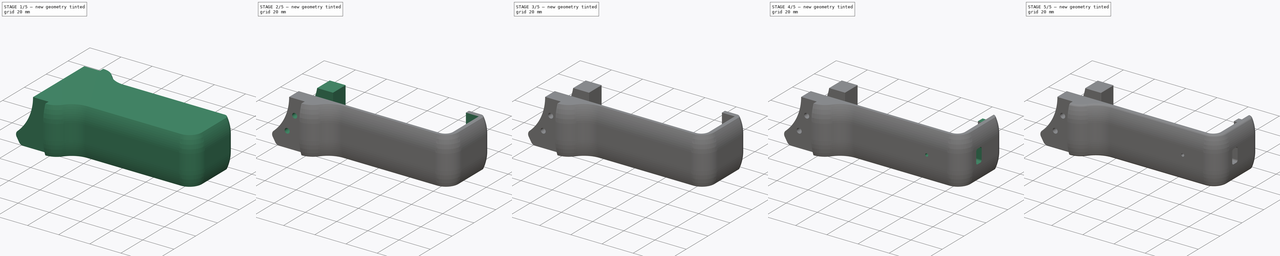
[diagram: build sequence overview — one tinted view per stage of 5, left to right]
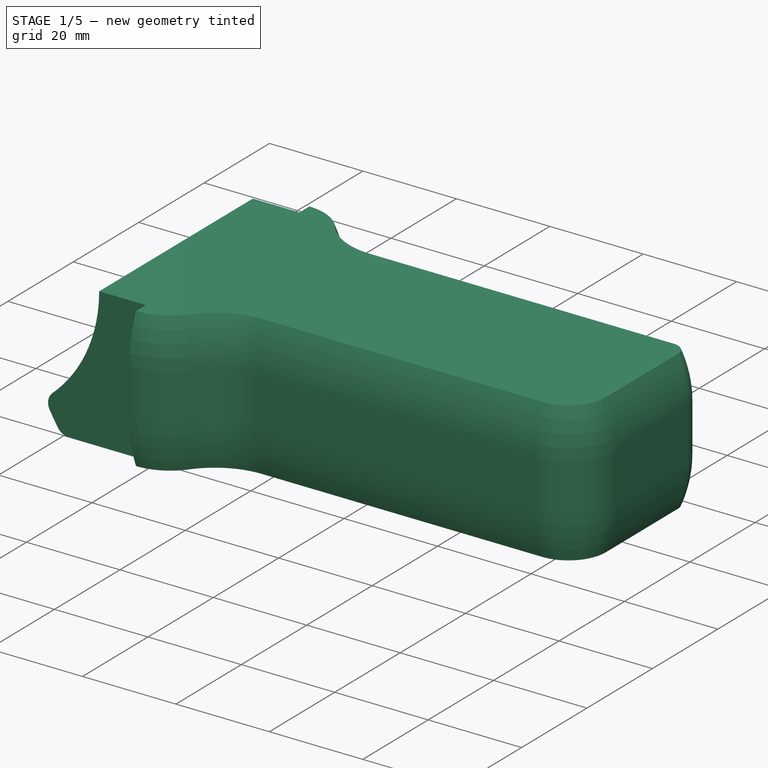
[diagram: stage 1 of 5 — iso view after this stage's code; geometry added in this stage tinted green]
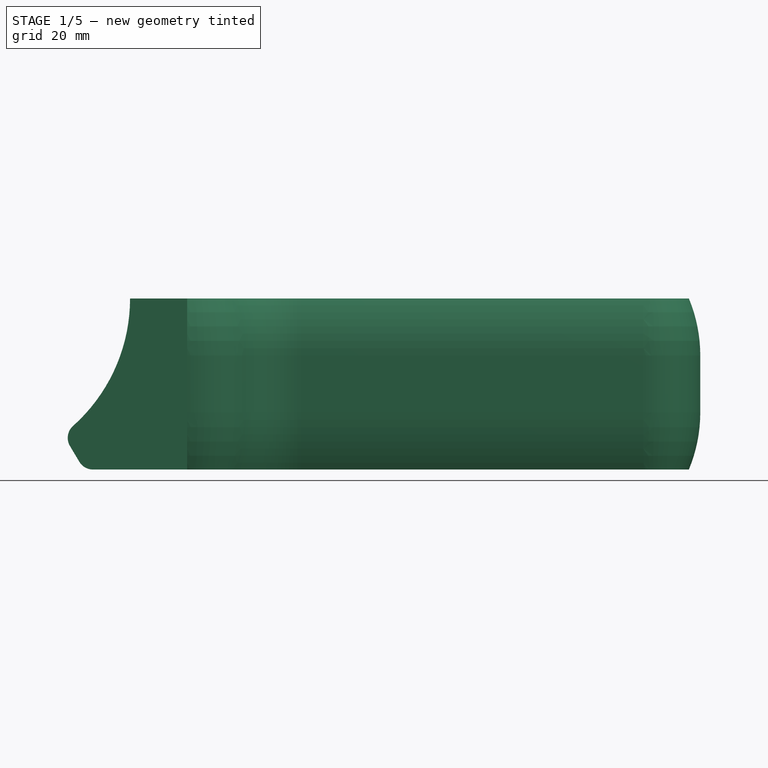
[diagram: stage 1 of 5 — front view after this stage's code; geometry added in this stage tinted green]
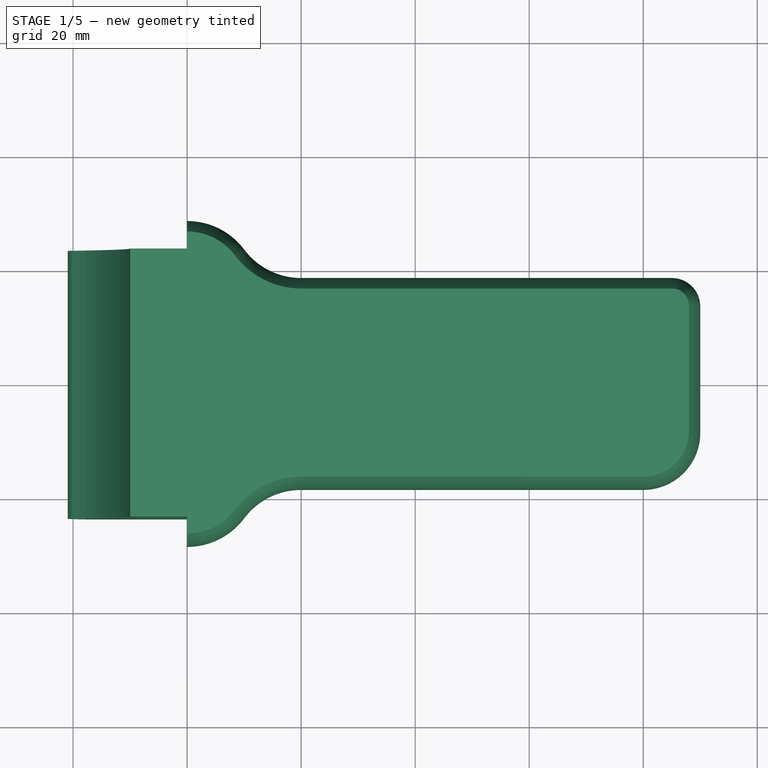
[diagram: stage 1 of 5 — top view after this stage's code; geometry added in this stage tinted green]
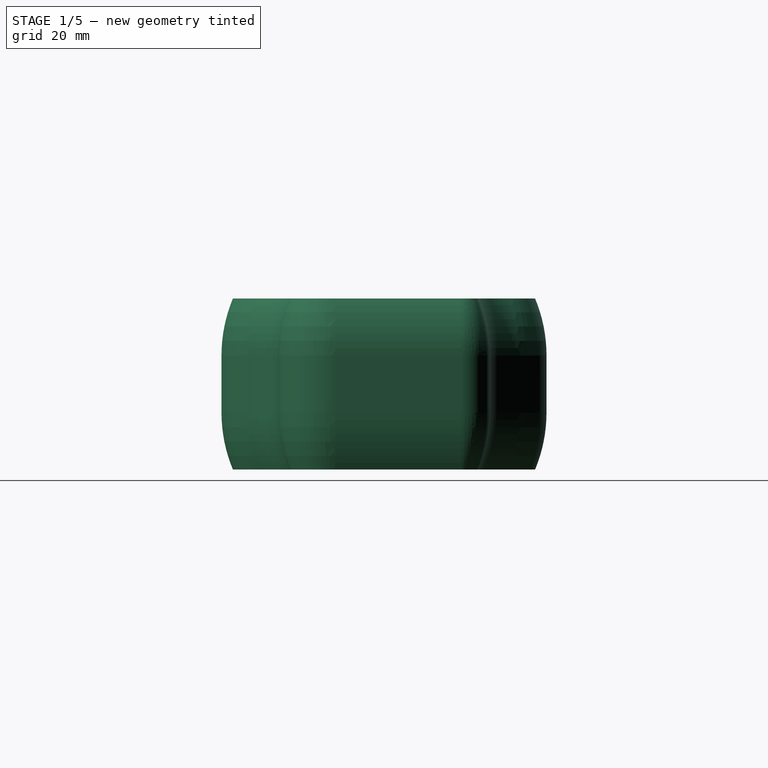
[diagram: stage 1 of 5 — right view after this stage's code; geometry added in this stage tinted green]
FCSTD DOCUMENT  (FreeCAD 1.0R38806 (Git))
Label: Limb_Top_Shell
License: All rights reserved
LicenseURL: https://en.wikipedia.org/wiki/All_rights_reserved
objects: Sketcher::SketchObject×18, PartDesign::Pocket×15, PartDesign::Fillet×3, PartDesign::Pad×2, PartDesign::SubtractivePipe×1, PartDesign::Body×1
note: 100 computed .brp shape members not serialized (recipe doc carries the construction recipe); baked Part::Feature solids carry a one-line shape summary decoded from their .brp

FEATURE [Sketcher::SketchObject] Sketch  label="sk_base"
  ArcFitTolerance = 1e-06
  AttachmentSupport = -> [XY_Plane]
  FullyConstrained = true
  MakeInternals = false
  MapMode = 5
  sketch-geometry (20):
    g0: LineSegment StartX=0 StartY=-23.5 StartZ=0 EndX=0 EndY=23.5 EndZ=0
    g1: LineSegment StartX=0 StartY=23.5 StartZ=0 EndX=40 EndY=23.5 EndZ=0
    g2: ArcOfCircle CenterX=40 CenterY=16 CenterZ=0 NormalX=0 NormalY=0 NormalZ=1 AngleXU=0 Radius=12.5 StartAngle=0.643501 EndAngle=1.5708
    g3: ArcOfCircle CenterX=60 CenterY=31 CenterZ=0 NormalX=0 NormalY=0 NormalZ=1 AngleXU=0 Radius=12.5 StartAngle=3.78509 EndAngle=4.71239
    g4: LineSegment StartX=60 StartY=18.5 StartZ=0 EndX=125 EndY=18.5 EndZ=0
    g5: LineSegment StartX=130 StartY=13.5 StartZ=0 EndX=130 EndY=-8.5 EndZ=0
    g6: LineSegment StartX=120 StartY=-18.5 StartZ=0 EndX=60 EndY=-18.5 EndZ=0
    g7: ArcOfCircle CenterX=60 CenterY=-31 CenterZ=0 NormalX=0 NormalY=0 NormalZ=1 AngleXU=0 Radius=12.5 StartAngle=1.5708 EndAngle=2.49809
    g8: ArcOfCircle CenterX=40 CenterY=-16 CenterZ=0 NormalX=0 NormalY=0 NormalZ=1 AngleXU=0 Radius=12.5 StartAngle=4.71239 EndAngle=5.63968
    g9: LineSegment StartX=40 StartY=-23.5 StartZ=0 EndX=0 EndY=-23.5 EndZ=0
    g10: ArcOfCircle CenterX=125 CenterY=13.5 CenterZ=0 NormalX=0 NormalY=0 NormalZ=1 AngleXU=0 Radius=5 StartAngle=0 EndAngle=1.5708
    g11: GeomPoint [constr] X=130 Y=18.5 Z=0
    g12: ArcOfCircle CenterX=120 CenterY=-8.5 CenterZ=0 NormalX=0 NormalY=0 NormalZ=1 AngleXU=0 Radius=10 StartAngle=4.71239 EndAngle=6.28319
    g13: GeomPoint [constr] X=130 Y=-18.5 Z=0
    g14: LineSegment StartX=40 StartY=-23.5 StartZ=0 EndX=40 EndY=-28.5 EndZ=0
    g15: LineSegment StartX=40 StartY=23.5 StartZ=0 EndX=40 EndY=28.5 EndZ=0
    g16: LineSegment [constr] StartX=40 StartY=-28.5 StartZ=0 EndX=0 EndY=-28.5 EndZ=0
    g17: LineSegment [constr] StartX=0 StartY=-28.5 StartZ=0 EndX=0 EndY=-23.5 EndZ=0
    g18: LineSegment [constr] StartX=40 StartY=28.5 StartZ=0 EndX=0 EndY=28.5 EndZ=0
    g19: LineSegment [constr] StartX=0 StartY=28.5 StartZ=0 EndX=0 EndY=23.5 EndZ=0
  constraints (53):
    c: Coincident(g0,g1)
    c: Horizontal(g1)
    c: Tangent(g2,g3) = 1.5708
    c: Horizontal(g4)
    c: Vertical(g5)
    c: Horizontal(g6)
    c: Tangent(g6,g7) = -1.5708
    c: Tangent(g7,g8) = 1.5708
    c: Coincident(g9,g0)
    c: Tangent(g3,g4) = -1.5708
    c: Distance(g11,g0) = 130  'length'
    c: PointOnObject(g11,g4)
    c: PointOnObject(g11,g5)
    c: Tangent(g4,g10) = 1.5708
    c: Tangent(g5,g10) = 1.5708
    c: PointOnObject(g13,g5)
    c: PointOnObject(g13,g6)
    c: Tangent(g5,g12) = 1.5708
    c: Tangent(g6,g12) = 1.5708
    c: DistanceX(g0,g1) = 40  'length_wide'
    c: Equal(g1,g9)
    c: Equal(g2,g3)
    c: Equal(g7,g2)
    c: Equal(g8,g2)
    c: DistanceX(g1,g3) = 20  'length_curve'
    c: Radius(g10) = 5  'rad_upper'
    c: Radius(g12) = 10  'rad_lower'
    c: Horizontal(g9)
    c: PointOnObject(g0,g-2)
    c: Symmetric(g0,g0,g-1)
    c: Coincident(g14,g9)
    c: Coincident(g14,g8)
    c: Vertical(g14)
    c: Perpendicular(g8,g14)
    c: Coincident(g15,g1)
    c: Coincident(g15,g2)
    c: Perpendicular(g2,g15)
    c: Vertical(g15)
    c: DistanceY(g15,g15) = 5  'width_mount'
    c: Equal(g15,g14)
    c: Coincident(g16,g8)
    c: PointOnObject(g16,g-2)
    c: Horizontal(g16)
    c: Coincident(g17,g16)
    c: Coincident(g17,g0)
    c: Coincident(g18,g2)
    c: PointOnObject(g18,g-2)
    c: Horizontal(g18)
    c: Coincident(g19,g18)
    c: Coincident(g19,g0)
    c: DistanceY(g16,g18) = 57  'width'
    c: DistanceY(g3,g2) = 10  'width_curve'
    c: Vertical(g3,g6)
FEATURE [PartDesign::Pad] Pad  label="pad_base"
  Direction = (0,0,1)
  Length = 30
  Length2 = 10
  Profile = -> Sketch
  ReferenceAxis = -> Sketch [N_Axis]
  Refine = true
  Reversed = true
  Suppressed = false
  Type = 0
FEATURE [Sketcher::SketchObject] Sketch001  label="sk_bevel"
  ArcFitTolerance = 1e-06
  AttachmentOffset = pos=(0,0,40) rot=(0,0,1;0rad)
  AttachmentSupport = -> [YZ_Plane]
  FullyConstrained = true
  MakeInternals = false
  MapMode = 5
  Placement = pos=(40,0,0) rot=(0.57735,0.57735,0.57735;2.0944rad)
  expr: .AttachmentOffset.Base.z = <<sk_base>>.Constraints.length_wide
  expr: .Constraints.height = <<pad_base>>.Length
  expr: .Constraints.position = <<sk_base>>.Constraints.width / 2
  sketch-geometry (6):
    g0: LineSegment StartX=-29.5 StartY=-30 StartZ=0 EndX=-29.5 EndY=7.1e-15 EndZ=0
    g1: LineSegment StartX=-29.5 StartY=5.3e-15 StartZ=0 EndX=-26.5 EndY=5.3e-15 EndZ=0
    g2: LineSegment StartX=-29.5 StartY=-30 StartZ=0 EndX=-26.5 EndY=-30 EndZ=0
    g3: LineSegment StartX=-28.5 StartY=-10 StartZ=0 EndX=-28.5 EndY=-20 EndZ=0
    g4: ArcOfCircle CenterX=-2.5 CenterY=-20 CenterZ=0 NormalX=0 NormalY=0 NormalZ=1 AngleXU=0 Radius=26 StartAngle=3.14159 EndAngle=3.53638
    g5: ArcOfCircle CenterX=-2.5 CenterY=-10 CenterZ=0 NormalX=0 NormalY=0 NormalZ=1 AngleXU=0 Radius=26 StartAngle=2.7468 EndAngle=3.14159
  constraints (18):
    c: Coincident(g0,g1)
    c: Horizontal(g1)
    c: Coincident(g0,g2)
    c: Horizontal(g2)
    c: Coincident(g4,g2)
    c: Coincident(g5,g1)
    c: Equal(g5,g4)
    c: DistanceY(g0,g0) = 30  'height'
    c: DistanceX(g2,g2) = 3  'width'
    c: Tangent(g4,g3) = -1.5708
    c: Tangent(g5,g3) = -1.5708
    c: Radius(g4) = 26  'rad_arc'
    c: DistanceY(g3,g3) = 10  'height_center'
    c: Vertical(g0)
    c: Vertical(g3)
    c: Distance(g-2,g3) = 28.5  'position'
    c: PointOnObject(g0,g-1)
    c: Vertical(g1,g2)
FEATURE [Sketcher::SketchObject] Sketch002  label="sk_joint_pan"
  ArcFitTolerance = 1e-06
  AttachmentSupport = -> [XZ_Plane]
  FullyConstrained = true
  MakeInternals = false
  MapMode = 5
  Placement = pos=(0,0,0) rot=(1,0,0;1.5708rad)
  expr: .Constraints.rad_joint = <<pad_base>>.Length
  sketch-geometry (1):
    g0: Circle CenterX=0 CenterY=0 CenterZ=0 NormalX=0 NormalY=0 NormalZ=1 AngleXU=0 Radius=30
  constraints (2):
    c: Coincident(g0,g-1)
    c: Radius(g0) = 30  'rad_joint'
FEATURE [PartDesign::Pocket] Pocket  label="pocket_joint_pan"
  BaseFeature = -> Pad
  Direction = (0,1,-2e-16)
  Length = 5
  Length2 = 5
  Midplane = true
  Profile = -> Sketch002
  ReferenceAxis = -> Sketch002 [N_Axis]
  Refine = true
  Suppressed = false
  Type = 1
FEATURE [Sketcher::SketchObject] Sketch003  label="sk_angled_top"
  ArcFitTolerance = 1e-06
  AttachmentSupport = -> [XZ_Plane]
  ExternalGeometry = -> [Sketch002]
  FullyConstrained = true
  MakeInternals = false
  MapMode = 5
  Placement = pos=(0,0,0) rot=(1,0,0;1.5708rad)
  sketch-geometry (6):
    g0: LineSegment StartX=0 StartY=-30 StartZ=0 EndX=23.5 EndY=-30 EndZ=0
    g1: LineSegment StartX=0 StartY=-30 StartZ=0 EndX=0 EndY=-22.3607 EndZ=0
    g2: LineSegment StartX=0 StartY=-22.3607 StartZ=0 EndX=20 EndY=-22.3607 EndZ=0
    g3: LineSegment StartX=19.4587 StartY=-25.8766 StartZ=0 EndX=21.0921 EndY=-28.6289 EndZ=0
    g4: ArcOfCircle CenterX=23.5 CenterY=-27.2 CenterZ=0 NormalX=0 NormalY=0 NormalZ=1 AngleXU=0 Radius=2.8 StartAngle=3.67717 EndAngle=4.71239
    g5: ArcOfCircle CenterX=21.8667 CenterY=-24.4477 CenterZ=0 NormalX=0 NormalY=0 NormalZ=1 AngleXU=0 Radius=2.8 StartAngle=2.30053 EndAngle=3.67717
  constraints (17):
    c: Horizontal(g0)
    c: Coincident(g0,g1)
    c: Vertical(g1)
    c: Coincident(g1,g2)
    c: Horizontal(g2)
    c: DistanceX(g0,g0) = 23.5  'width_upper'
    c: DistanceX(g2,g2) = 20  'width_lower'
    c: PointOnObject(g2,g-3)
    c: PointOnObject(g0,g-2)
    c: PointOnObject(g0,g-3)
    c: Coincident(g5,g2)
    c: Tangent(g4,g0) = -1.5708
    c: Tangent(g4,g3) = -1.5708
    c: Tangent(g5,g3) = -1.5708
    c: Tangent(g5,g-3)
    c: Radius(g5) = 2.8  'rad_bevel'
    c: Equal(g5,g4)
FEATURE [PartDesign::Pocket] Pocket001  label="pocket_angled_top"
  BaseFeature = -> Pocket
  Direction = (0,1,-2e-16)
  Length = 5
  Length2 = 5
  Midplane = true
  Profile = -> Sketch003
  ReferenceAxis = -> Sketch003 [N_Axis]
  Refine = true
  Suppressed = false
  Type = 1
FEATURE [Sketcher::SketchObject] Sketch004  label="sk_servo_screw_plane"
  ArcFitTolerance = 1e-06
  AttachmentOffset = pos=(0,0,-18.5) rot=(0,0,1;0rad)
  AttachmentSupport = -> [XZ_Plane]
  FullyConstrained = true
  MakeInternals = false
  MapMode = 5
  Placement = pos=(0,18.5,-4.1e-15) rot=(1,0,0;1.5708rad)
  expr: .AttachmentOffset.Base.z = -<<sk_base>>.Constraints.width / 2 + <<sk_base>>.Constraints.width_curve
  expr: Constraints[11] = <<sk_base>>.Constraints.length - <<sk_base>>.Constraints.rad_upper
  sketch-geometry (4):
    g0: LineSegment StartX=117.25 StartY=-5 StartZ=0 EndX=117.25 EndY=-25 EndZ=0
    g1: LineSegment StartX=117.25 StartY=-25 StartZ=0 EndX=125 EndY=-25 EndZ=0
    g2: LineSegment StartX=125 StartY=-25 StartZ=0 EndX=125 EndY=-5 EndZ=0
    g3: LineSegment StartX=125 StartY=-5 StartZ=0 EndX=117.25 EndY=-5 EndZ=0
  constraints (12):
    c: Coincident(g0,g1)
    c: Coincident(g1,g2)
    c: Coincident(g2,g3)
    c: Coincident(g3,g0)
    c: Vertical(g0)
    c: Vertical(g2)
    c: Horizontal(g1)
    c: Horizontal(g3)
    c: DistanceY(g0,g0) = 20  'height'
    c: DistanceX(g1,g1) = 7.75  'width'
    c: DistanceY(g0,g-1) = 5  'position_height'
    c: Distance(g2,g-2) = 125
FEATURE [Sketcher::SketchObject] Sketch005  label="sk_bottom_removal_and_interlock"
  ArcFitTolerance = 1e-06
  AttachmentSupport = -> [XY_Plane]
  FullyConstrained = true
  MakeInternals = false
  MapMode = 5
  expr: .Constraints.position_width = <<sk_base>>.Constraints.width / 2
  sketch-geometry (13):
    g0: LineSegment StartX=0 StartY=28.5 StartZ=0 EndX=117.25 EndY=28.5 EndZ=0
    g1: LineSegment StartX=117.25 StartY=28.5 StartZ=0 EndX=117.25 EndY=13.75 EndZ=0
    g2: LineSegment StartX=117.25 StartY=13.75 StartZ=0 EndX=125.5 EndY=13.75 EndZ=0
    g3: LineSegment StartX=125.5 StartY=13.75 StartZ=0 EndX=125.5 EndY=-9.75 EndZ=0
    g4: ArcOfCircle CenterX=120.5 CenterY=-9.75 CenterZ=0 NormalX=0 NormalY=0 NormalZ=1 AngleXU=0 Radius=5 StartAngle=4.71239 EndAngle=6.28319
    g5: LineSegment StartX=120.5 StartY=-14.75 StartZ=0 EndX=0 EndY=-14.75 EndZ=0
    g6: LineSegment StartX=0 StartY=-14.75 StartZ=0 EndX=0 EndY=2.75 EndZ=0
    g7: LineSegment StartX=0 StartY=2.75 StartZ=0 EndX=39.75 EndY=2.75 EndZ=0
    g8: LineSegment StartX=39.75 StartY=2.75 StartZ=0 EndX=39.75 EndY=14.25 EndZ=0
    g9: LineSegment StartX=39.75 StartY=14.25 StartZ=0 EndX=0 EndY=14.25 EndZ=0
    g10: LineSegment StartX=0 StartY=14.25 StartZ=0 EndX=0 EndY=28.5 EndZ=0
    g11: LineSegment [constr] StartX=125.5 StartY=13.75 StartZ=0 EndX=125.5 EndY=28.5 EndZ=0
    g12: LineSegment [constr] StartX=125.5 StartY=28.5 StartZ=0 EndX=117.25 EndY=28.5 EndZ=0
  constraints (37):
    c: PointOnObject(g0,g-2)
    c: Horizontal(g0)
    c: Coincident(g0,g1)
    c: Vertical(g1)
    c: Coincident(g1,g2)
    c: Horizontal(g2)
    c: Coincident(g2,g3)
    c: Vertical(g3)
    c: Tangent(g3,g4) = 1.5708
    c: PointOnObject(g5,g-2)
    c: Horizontal(g5)
    c: Coincident(g5,g6)
    c: PointOnObject(g6,g-2)
    c: Coincident(g6,g7)
    c: Horizontal(g7)
    c: Coincident(g7,g8)
    c: Vertical(g8)
    c: Coincident(g8,g9)
    c: PointOnObject(g9,g-2)
    c: Horizontal(g9)
    c: Coincident(g9,g10)
    c: Coincident(g10,g0)
    c: DistanceY(g8,g8) = 11.5  'width_interlock'
    c: DistanceX(g9,g9) = 39.75  'length_interlock'
    c: Coincident(g11,g2)
    c: Vertical(g11)
    c: Coincident(g12,g0)
    c: Horizontal(g12)
    c: DistanceX(g0,g12) = 125.5  'length'
    c: Coincident(g11,g12)
    c: Tangent(g4,g5) = 1.5708
    c: Radius(g4) = 5  'rad_lower'
    c: DistanceY(g1,g1) = 14.75  'width_notch'
    c: DistanceX(g2,g2) = 8.25  'length_notch'
    c: DistanceY(g4,g11) = 43.25  'width'
    c: Distance(g0,g-1) = 28.5  'position_width'
    c: DistanceY(g10,g10) = 14.25  'position_interlock'
FEATURE [Sketcher::SketchObject] Sketch006  label="sk_shorten_interlock"
  ArcFitTolerance = 1e-06
  AttachmentSupport = -> [XY_Plane]
  ExternalGeometry = -> [Sketch005]
  FullyConstrained = true
  MakeInternals = false
  MapMode = 5
  sketch-geometry (4):
    g0: LineSegment StartX=0 StartY=14.25 StartZ=0 EndX=0 EndY=2.75 EndZ=0
    g1: LineSegment StartX=0 StartY=2.75 StartZ=0 EndX=39.75 EndY=2.75 EndZ=0
    g2: LineSegment StartX=39.75 StartY=2.75 StartZ=0 EndX=39.75 EndY=14.25 EndZ=0
    g3: LineSegment StartX=39.75 StartY=14.25 StartZ=0 EndX=0 EndY=14.25 EndZ=0
  constraints (10):
    c: Coincident(g0,g1)
    c: Coincident(g1,g2)
    c: Coincident(g2,g3)
    c: Coincident(g3,g0)
    c: Vertical(g0)
    c: Vertical(g2)
    c: Horizontal(g1)
    c: Horizontal(g3)
    c: Coincident(g0,g-3)
    c: Coincident(g1,g-5)
FEATURE [Sketcher::SketchObject] Sketch007  label="sk_screwholes_ball_bearing_mount"
  ArcFitTolerance = 1e-06
  AttachmentOffset = pos=(0,0,23.5) rot=(0,0,1;0rad)
  AttachmentSupport = -> [XZ_Plane]
  FullyConstrained = true
  MakeInternals = false
  MapMode = 5
  Placement = pos=(0,-23.5,5.2e-15) rot=(1,0,0;1.5708rad)
  expr: .AttachmentOffset.Base.z = <<sk_base>>.Constraints.width / 2 - <<sk_base>>.Constraints.width_mount
  sketch-geometry (3):
    g0: Circle [constr] CenterX=0 CenterY=0 CenterZ=0 NormalX=0 NormalY=0 NormalZ=1 AngleXU=0 Radius=35
    g1: Circle CenterX=33.541 CenterY=-10 CenterZ=0 NormalX=0 NormalY=0 NormalZ=1 AngleXU=0 Radius=1.6
    g2: Circle CenterX=28.7228 CenterY=-20 CenterZ=0 NormalX=0 NormalY=0 NormalZ=1 AngleXU=0 Radius=1.6
  constraints (8):
    c: Coincident(g0,g-1)
    c: Radius(g0) = 35  'rad_helper'
    c: PointOnObject(g1,g0)
    c: PointOnObject(g2,g0)
    c: Distance(g1,g-1) = 10  'position_height'
    c: DistanceY(g2,g1) = 10  'distance'
    c: Equal(g1,g2)
    c: Radius(g1) = 1.6  'rad_screw'
FEATURE [Sketcher::SketchObject] Sketch008  label="sk_screwholes_servo_horn_mount"
  ArcFitTolerance = 1e-06
  AttachmentOffset = pos=(0,0,-14.25) rot=(0,0,1;0rad)
  AttachmentSupport = -> [XZ_Plane]
  FullyConstrained = true
  MakeInternals = false
  MapMode = 5
  Placement = pos=(0,14.25,-3.2e-15) rot=(1,0,0;1.5708rad)
  expr: .AttachmentOffset.Base.z = -<<sk_base>>.Constraints.width / 2 + <<sk_bottom_removal_and_interlock>>.Constraints.position_interlock
  expr: .Constraints.rad_screw = <<sk_screwholes_ball_bearing_mount>>.Constraints.rad_screw
  sketch-geometry (3):
    g0: Circle [constr] CenterX=0 CenterY=0 CenterZ=0 NormalX=0 NormalY=0 NormalZ=1 AngleXU=0 Radius=35
    g1: Circle CenterX=33.541 CenterY=-10 CenterZ=0 NormalX=0 NormalY=0 NormalZ=1 AngleXU=0 Radius=1.6
    g2: Circle CenterX=28.7228 CenterY=-20 CenterZ=0 NormalX=0 NormalY=0 NormalZ=1 AngleXU=0 Radius=1.6
  constraints (8):
    c: Coincident(g0,g-1)
    c: Radius(g0) = 35  'rad_helper'
    c: PointOnObject(g1,g0)
    c: PointOnObject(g2,g0)
    c: Equal(g1,g2)
    c: Distance(g1,g-1) = 10  'position_height'
    c: DistanceY(g2,g1) = 10  'distance'
    c: Radius(g1) = 1.6  'rad_screw'
FEATURE [Sketcher::SketchObject] Sketch009  label="sk_bottom_nuthole_servo_horn_mount"
  ArcFitTolerance = 1e-06
  AttachmentSupport = -> [YZ_Plane]
  FullyConstrained = true
  MakeInternals = false
  MapMode = 5
  Placement = pos=(0,0,0) rot=(0.57735,0.57735,0.57735;2.0944rad)
  sketch-geometry (4):
    g0: LineSegment StartX=10 StartY=-7.1 StartZ=0 EndX=7 EndY=-7.1 EndZ=0
    g1: LineSegment StartX=7 StartY=-7.1 StartZ=0 EndX=7 EndY=-12.9 EndZ=0
    g2: LineSegment StartX=7 StartY=-12.9 StartZ=0 EndX=10 EndY=-12.9 EndZ=0
    g3: LineSegment StartX=10 StartY=-12.9 StartZ=0 EndX=10 EndY=-7.1 EndZ=0
  constraints (12):
    c: Coincident(g0,g1)
    c: Coincident(g1,g2)
    c: Coincident(g2,g3)
    c: Coincident(g3,g0)
    c: Horizontal(g0)
    c: Horizontal(g2)
    c: Vertical(g1)
    c: Vertical(g3)
    c: DistanceY(g3,g3) = 5.8  'height'
    c: Distance(g2,g2) = 3  'width'
    c: Distance(g0,g-1) = 7.1  'position_height'
    c: Distance(g1,g-2) = 7  'position_width'
FEATURE [Sketcher::SketchObject] Sketch010  label="sk_top_nuthole_servo_horn_mount"
  ArcFitTolerance = 1e-06
  AttachmentSupport = -> [YZ_Plane]
  FullyConstrained = true
  MakeInternals = false
  MapMode = 5
  Placement = pos=(0,0,0) rot=(0.57735,0.57735,0.57735;2.0944rad)
  expr: .Constraints.height = <<sk_bottom_nuthole_servo_horn_mount>>.Constraints.height
  expr: .Constraints.position_width = <<sk_bottom_nuthole_servo_horn_mount>>.Constraints.position_width
  expr: .Constraints.width = <<sk_bottom_nuthole_servo_horn_mount>>.Constraints.width
  sketch-geometry (4):
    g0: LineSegment StartX=10 StartY=-17.1 StartZ=0 EndX=7 EndY=-17.1 EndZ=0
    g1: LineSegment StartX=7 StartY=-17.1 StartZ=0 EndX=7 EndY=-22.9 EndZ=0
    g2: LineSegment StartX=7 StartY=-22.9 StartZ=0 EndX=10 EndY=-22.9 EndZ=0
    g3: LineSegment StartX=10 StartY=-22.9 StartZ=0 EndX=10 EndY=-17.1 EndZ=0
  constraints (12):
    c: Coincident(g0,g1)
    c: Coincident(g1,g2)
    c: Coincident(g2,g3)
    c: Coincident(g3,g0)
    c: Horizontal(g0)
    c: Horizontal(g2)
    c: Vertical(g1)
    c: Vertical(g3)
    c: Distance(g2,g2) = 3  'width'
    c: DistanceY(g3,g3) = 5.8  'height'
    c: Distance(g1,g-2) = 7  'position_width'
    c: Distance(g0,g-1) = 17.1  'position_height'
FEATURE [Sketcher::SketchObject] Sketch011  label="sk_screwholes_servopocket"
  ArcFitTolerance = 1e-06
  AttachmentOffset = pos=(0,0,-18.5) rot=(0,0,1;0rad)
  AttachmentSupport = -> [XZ_Plane]
  FullyConstrained = true
  MakeInternals = false
  MapMode = 5
  Placement = pos=(0,18.5,-4.1e-15) rot=(1,0,0;1.5708rad)
  expr: .AttachmentOffset.Base.z = -<<sk_base>>.Constraints.width / 2 + <<sk_base>>.Constraints.width_curve
  expr: .Constraints.rad_screw = <<sk_screwholes_ball_bearing_mount>>.Constraints.rad_screw
  sketch-geometry (2):
    g0: Circle CenterX=121 CenterY=-10 CenterZ=0 NormalX=0 NormalY=0 NormalZ=1 AngleXU=0 Radius=1.6
    g1: Circle CenterX=121 CenterY=-20 CenterZ=0 NormalX=0 NormalY=0 NormalZ=1 AngleXU=0 Radius=1.6
  constraints (6):
    c: Equal(g0,g1)
    c: Vertical(g1,g0)
    c: Radius(g0) = 1.6  'rad_screw'
    c: DistanceY(g1,g0) = 10  'distance'
    c: Distance(g0,g-1) = 10  'position_height'
    c: Distance(g0,g-2) = 121  'position_width'
FEATURE [Sketcher::SketchObject] Sketch012  label="sk_cableguide"
  ArcFitTolerance = 1e-06
  AttachmentOffset = pos=(0,0,-25) rot=(0,0,1;0rad)
  AttachmentSupport = -> [XY_Plane]
  ExternalGeometry = -> [Sketch005]
  FullyConstrained = true
  MakeInternals = false
  MapMode = 5
  Placement = pos=(0,0,-25) rot=(0,0,1;0rad)
  expr: .AttachmentOffset.Base.z = -<<pocket_bottom_removal_and_interlock>>.Length
  sketch-geometry (12):
    g0: LineSegment StartX=31 StartY=-5.75 StartZ=0 EndX=124 EndY=-5.75 EndZ=0
    g1: LineSegment StartX=125 StartY=-4.75 StartZ=0 EndX=125 EndY=1.75 EndZ=0
    g2: LineSegment StartX=124 StartY=2.75 StartZ=0 EndX=31 EndY=2.75 EndZ=0
    g3: LineSegment StartX=30 StartY=1.75 StartZ=0 EndX=30 EndY=-4.75 EndZ=0
    g4: ArcOfCircle CenterX=31 CenterY=1.75 CenterZ=0 NormalX=0 NormalY=0 NormalZ=1 AngleXU=0 Radius=1 StartAngle=1.5708 EndAngle=3.14159
    g5: GeomPoint [constr] X=30 Y=2.75 Z=0
    g6: ArcOfCircle CenterX=31 CenterY=-4.75 CenterZ=0 NormalX=0 NormalY=0 NormalZ=1 AngleXU=0 Radius=1 StartAngle=3.14159 EndAngle=4.71239
    g7: GeomPoint [constr] X=30 Y=-5.75 Z=0
    g8: ArcOfCircle CenterX=124 CenterY=1.75 CenterZ=0 NormalX=0 NormalY=0 NormalZ=1 AngleXU=0 Radius=1 StartAngle=0 EndAngle=1.5708
    g9: GeomPoint [constr] X=125 Y=2.75 Z=0
    g10: ArcOfCircle CenterX=124 CenterY=-4.75 CenterZ=0 NormalX=0 NormalY=0 NormalZ=1 AngleXU=0 Radius=1 StartAngle=4.71239 EndAngle=6.28319
    g11: GeomPoint [constr] X=125 Y=-5.75 Z=0
  constraints (28):
    c: Horizontal(g0)
    c: Horizontal(g2)
    c: Vertical(g1)
    c: Vertical(g3)
    c: DistanceX(g7,g11) = 95  'width'
    c: DistanceX(g-1,g7) = 30  'position_width'
    c: PointOnObject(g5,g-3)
    c: Distance(g11,g9) = 8.5  'height'
    c: PointOnObject(g5,g2)
    c: PointOnObject(g5,g3)
    c: Tangent(g2,g4) = -1.5708
    c: Tangent(g3,g4) = -1.5708
    c: PointOnObject(g7,g0)
    c: PointOnObject(g7,g3)
    c: Tangent(g0,g6) = -1.5708
    c: Tangent(g3,g6) = -1.5708
    c: PointOnObject(g9,g1)
    c: PointOnObject(g9,g2)
    c: Tangent(g1,g8) = -1.5708
    c: Tangent(g2,g8) = -1.5708
    c: PointOnObject(g11,g0)
    c: PointOnObject(g11,g1)
    c: Tangent(g0,g10) = -1.5708
    c: Tangent(g1,g10) = -1.5708
    c: Equal(g4,g6)
    c: Equal(g4,g8)
    c: Equal(g4,g10)
    c: Radius(g4) = 1  'rad_corner'
FEATURE [Sketcher::SketchObject] Sketch013  label="sk_servocable_hole"
  ArcFitTolerance = 1e-06
  AttachmentOffset = pos=(0,0,130) rot=(0,0,1;0rad)
  AttachmentSupport = -> [YZ_Plane]
  FullyConstrained = true
  MakeInternals = false
  MapMode = 5
  Placement = pos=(130,0,0) rot=(0.57735,0.57735,0.57735;2.0944rad)
  expr: .AttachmentOffset.Base.z = <<sk_base>>.Constraints.length
  sketch-geometry (11):
    g0: LineSegment StartX=-6 StartY=-11.75 StartZ=0 EndX=-6 EndY=-18.25 EndZ=0
    g1: LineSegment StartX=-4.75 StartY=-19.5 StartZ=0 EndX=-2.25 EndY=-19.5 EndZ=0
    g2: LineSegment StartX=-1 StartY=-18.25 StartZ=0 EndX=-1 EndY=-11.75 EndZ=0
    g3: LineSegment StartX=-2.25 StartY=-10.5 StartZ=0 EndX=-4.75 EndY=-10.5 EndZ=0
    g4: ArcOfCircle CenterX=-4.75 CenterY=-11.75 CenterZ=0 NormalX=0 NormalY=0 NormalZ=1 AngleXU=0 Radius=1.25 StartAngle=1.5708 EndAngle=3.14159
    g5: ArcOfCircle CenterX=-4.75 CenterY=-18.25 CenterZ=0 NormalX=0 NormalY=0 NormalZ=1 AngleXU=0 Radius=1.25 StartAngle=3.14159 EndAngle=4.71239
    g6: ArcOfCircle CenterX=-2.25 CenterY=-18.25 CenterZ=0 NormalX=0 NormalY=0 NormalZ=1 AngleXU=0 Radius=1.25 StartAngle=4.71239 EndAngle=6.2832
    g7: ArcOfCircle CenterX=-2.25 CenterY=-11.75 CenterZ=0 NormalX=0 NormalY=0 NormalZ=1 AngleXU=0 Radius=1.25 StartAngle=0 EndAngle=1.5708
    g8: GeomPoint [constr] X=-6 Y=-10.5 Z=0
    g9: GeomPoint [constr] X=-1 Y=-19.5 Z=0
    g10: Circle [constr] CenterX=-3.5 CenterY=-15 CenterZ=0 NormalX=0 NormalY=0 NormalZ=1 AngleXU=0 Radius=2.5
  constraints (27):
    c: Tangent(g0,g4) = -1.5708
    c: Tangent(g0,g5) = -1.5708
    c: Tangent(g1,g5) = -1.5708
    c: Tangent(g1,g6) = -1.5708
    c: Tangent(g2,g7) = -1.5708
    c: Tangent(g3,g7) = -1.5708
    c: Tangent(g3,g4) = -1.5708
    c: Vertical(g0)
    c: Vertical(g2)
    c: Horizontal(g1)
    c: Horizontal(g3)
    c: Equal(g4,g5)
    c: Equal(g5,g6)
    c: Equal(g6,g7)
    c: PointOnObject(g8,g0)
    c: PointOnObject(g8,g3)
    c: PointOnObject(g9,g1)
    c: PointOnObject(g9,g2)
    c: Tangent(g10,g2)
    c: Tangent(g10,g0)
    c: DistanceY(g1,g3) = 9  'height'
    c: Diameter(g10) = 5  'dia_helper'
    c: Symmetric(g4,g6,g10)
    c: Coincident(g6,g2)
    c: Distance(g10,g-1) = 15  'position_height'
    c: Distance(g10,g-2) = 3.5  'position_width'
    c: Radius(g7) = 1.25  'rad_corner'
FEATURE [Sketcher::SketchObject] Sketch014  label="sk_servopocket_interlock"
  ArcFitTolerance = 1e-06
  AttachmentSupport = -> [XY_Plane]
  ExternalGeometry = -> [Sketch005]
  FullyConstrained = true
  MakeInternals = false
  MapMode = 5
  sketch-geometry (4):
    g0: LineSegment StartX=117.25 StartY=13.75 StartZ=0 EndX=125.5 EndY=13.75 EndZ=0
    g1: LineSegment StartX=125.5 StartY=13.75 StartZ=0 EndX=125.5 EndY=18.75 EndZ=0
    g2: LineSegment StartX=125.5 StartY=18.75 StartZ=0 EndX=117.25 EndY=18.75 EndZ=0
    g3: LineSegment StartX=117.25 StartY=18.75 StartZ=0 EndX=117.25 EndY=13.75 EndZ=0
  constraints (11):
    c: Coincident(g0,g1)
    c: Coincident(g1,g2)
    c: Coincident(g2,g3)
    c: Coincident(g3,g0)
    c: Horizontal(g0)
    c: Horizontal(g2)
    c: Vertical(g1)
    c: Vertical(g3)
    c: Coincident(g0,g-4)
    c: Distance(g2,g2) = 8.25  'width'
    c: DistanceY(g1,g1) = 5  'height'
FEATURE [PartDesign::SubtractivePipe] SubtractivePipe  label="subpipe_bevel"
  AuxilleryCurvelinear = true
  AuxillerySpineTangent = false
  BaseFeature = -> Pocket001
  Binormal = (0,0,0)
  Mode = 0
  Profile = -> Sketch001
  Refine = true
  Spine = -> Pocket001 [Edge39,Edge38,Edge37,Edge36,Edge35,Edge34,Edge33,Edge32,Edge31]
  SpineTangent = false
  Suppressed = false
  Transformation = 0
  Transition = 0
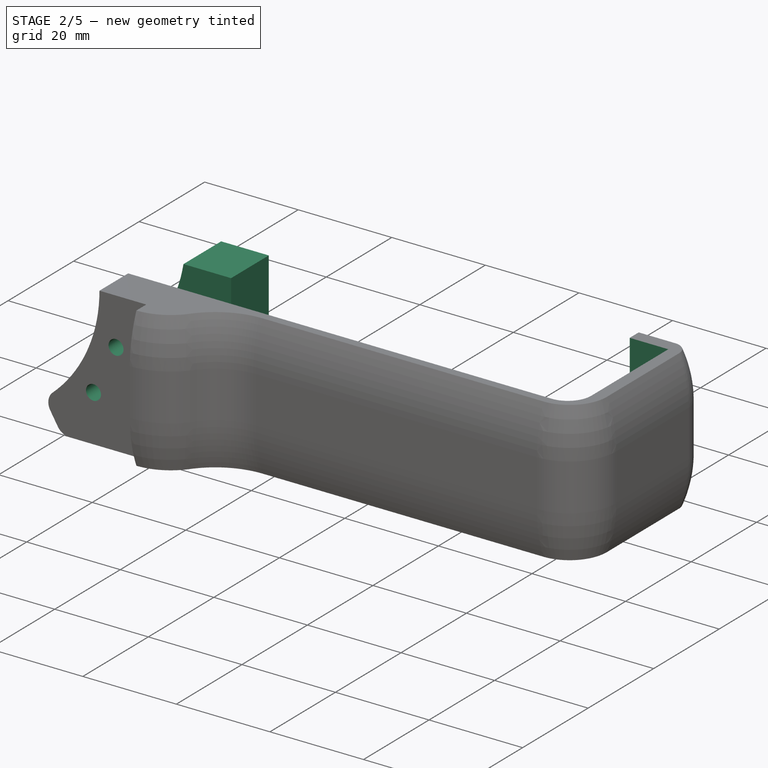
[diagram: stage 2 of 5 — iso view after this stage's code; geometry added in this stage tinted green]
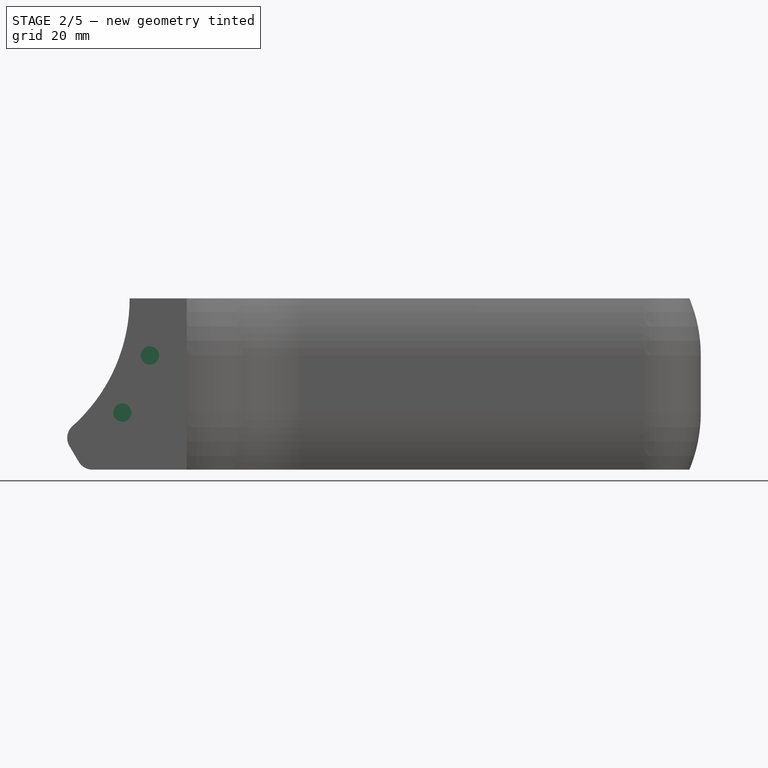
[diagram: stage 2 of 5 — front view after this stage's code; geometry added in this stage tinted green]
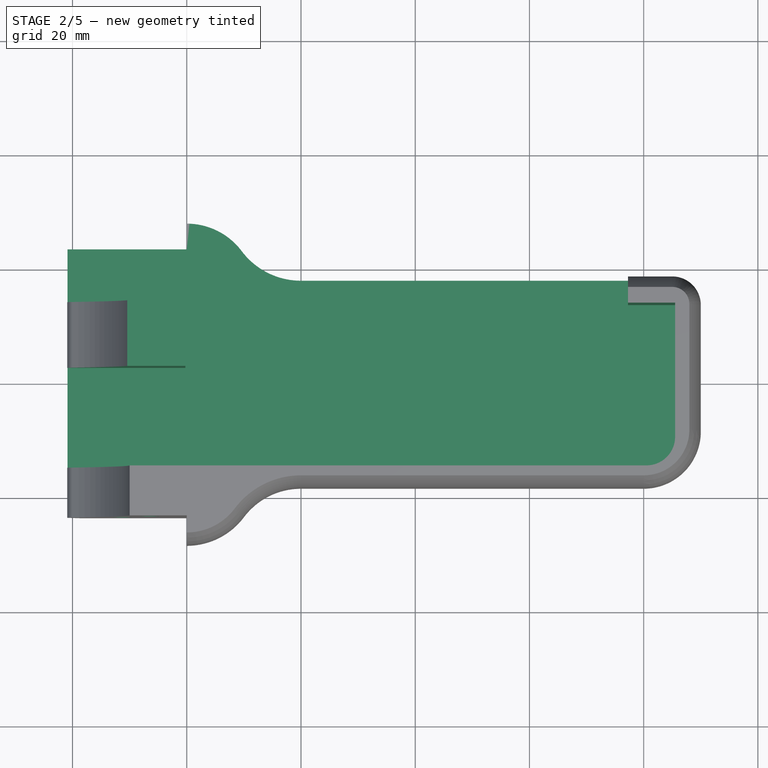
[diagram: stage 2 of 5 — top view after this stage's code; geometry added in this stage tinted green]
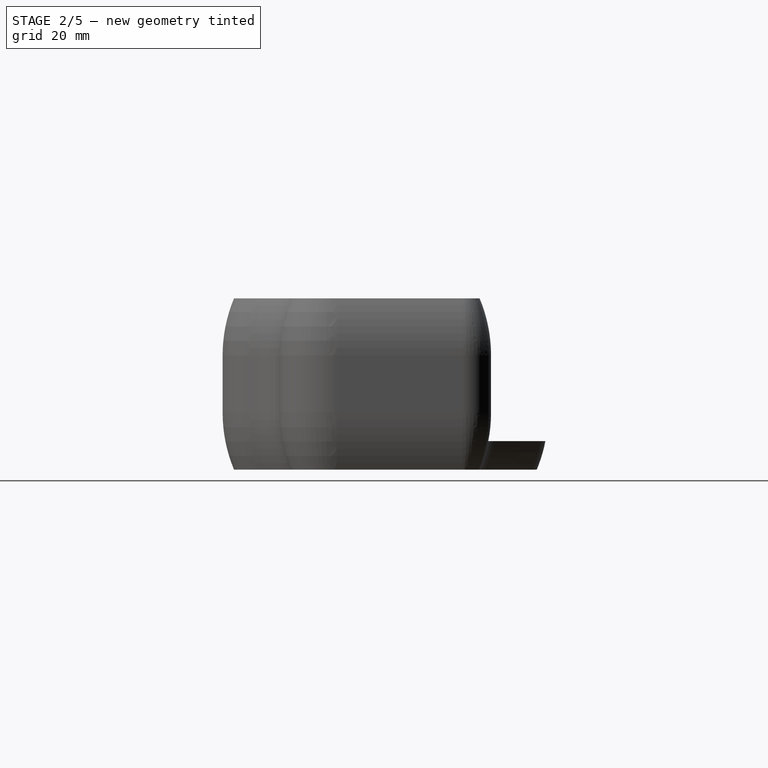
[diagram: stage 2 of 5 — right view after this stage's code; geometry added in this stage tinted green]
FEATURE [PartDesign::Pocket] Pocket003  label="pocket_bottom_removal_and_interlock"
  BaseFeature = -> SubtractivePipe
  Direction = (0,0,-1)
  Length = 25
  Length2 = 5
  Profile = -> Sketch005
  ReferenceAxis = -> Sketch005 [N_Axis]
  Refine = true
  Suppressed = false
  Type = 0
FEATURE [PartDesign::Pocket] Pocket004  label="pocket_shorten_interlock"
  BaseFeature = -> Pocket003
  Direction = (0,0,-1)
  Length = 5
  Length2 = 5
  Profile = -> Sketch006
  ReferenceAxis = -> Sketch006 [N_Axis]
  Refine = true
  Suppressed = false
  Type = 0
FEATURE [PartDesign::Pocket] Pocket005  label="pocket_screwholes_ball_bearing_mount"
  BaseFeature = -> Pocket004
  Direction = (0,1,-2e-16)
  Length = 22
  Length2 = 5
  Profile = -> Sketch007
  ReferenceAxis = -> Sketch007 [N_Axis]
  Refine = true
  Suppressed = false
  Type = 0
FEATURE [PartDesign::Pocket] Pocket006  label="pocket_screwholes_servo_horn_mount"
  BaseFeature = -> Pocket005
  Direction = (0,1,-2e-16)
  Length = 10
  Length2 = 5
  Profile = -> Sketch008
  ReferenceAxis = -> Sketch008 [N_Axis]
  Refine = true
  Reversed = true
  Suppressed = false
  Type = 0
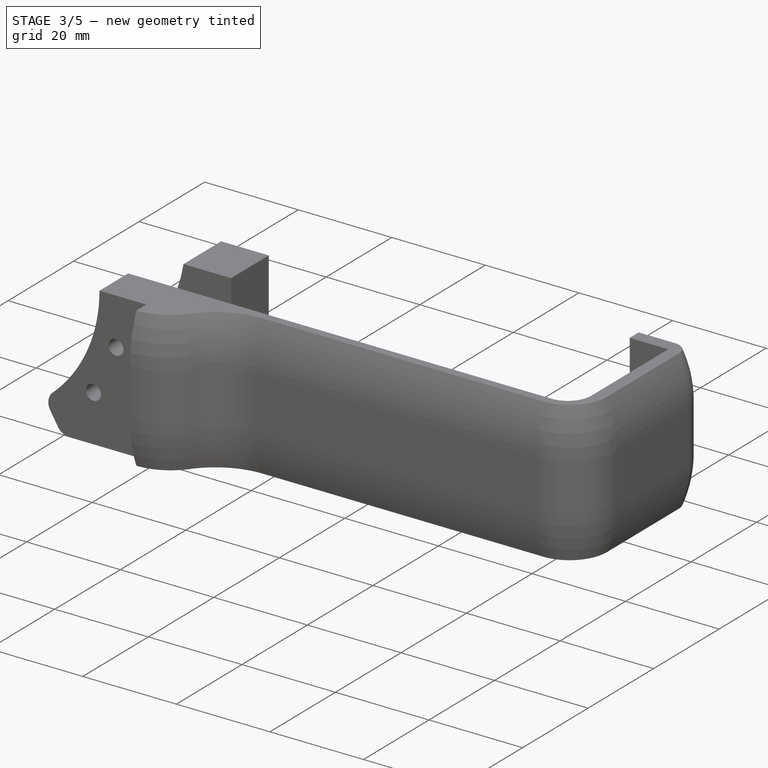
[diagram: stage 3 of 5 — iso view after this stage's code; geometry added in this stage tinted green]
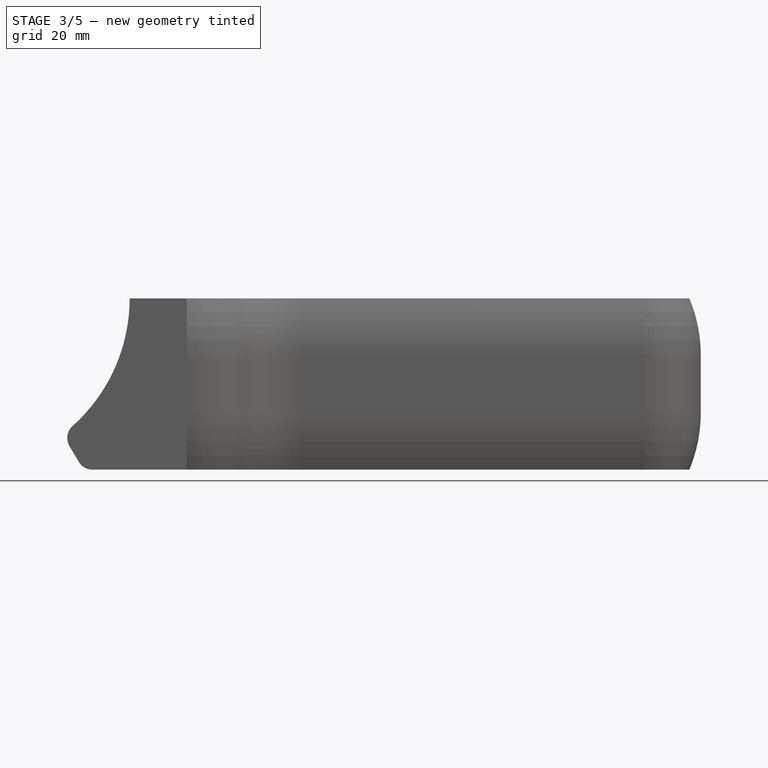
[diagram: stage 3 of 5 — front view after this stage's code; geometry added in this stage tinted green]
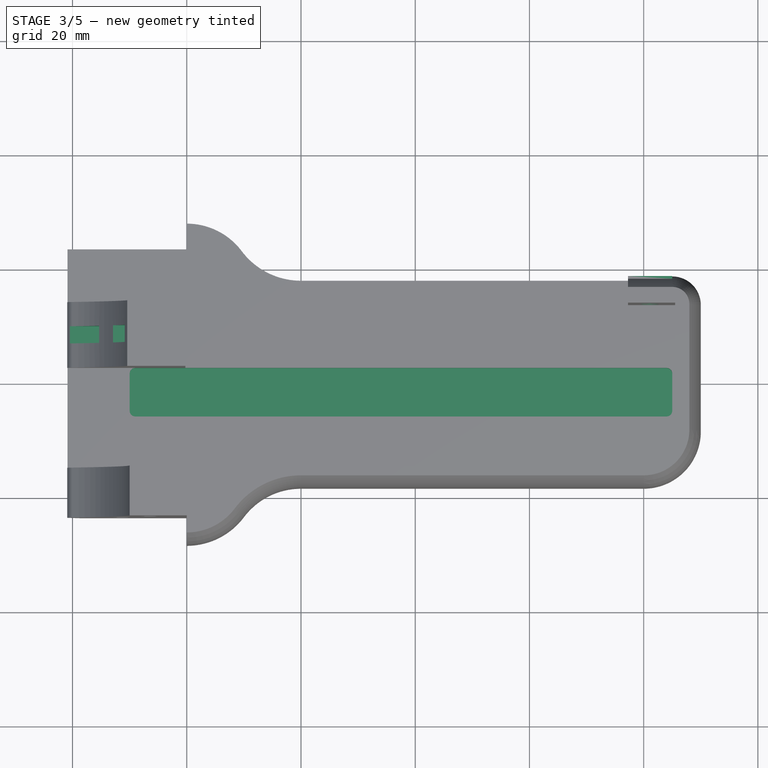
[diagram: stage 3 of 5 — top view after this stage's code; geometry added in this stage tinted green]
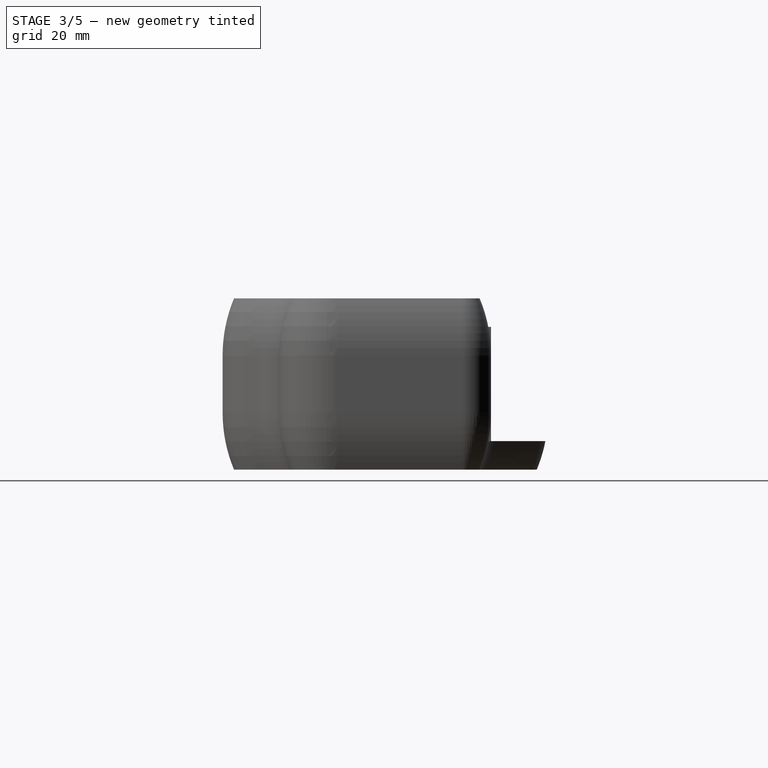
[diagram: stage 3 of 5 — right view after this stage's code; geometry added in this stage tinted green]
FEATURE [PartDesign::Pocket] Pocket007  label="pocket_bottom_nuthole_servo_horn_mount"
  BaseFeature = -> Pocket006
  Direction = (-1,0,0)
  Length = 36
  Length2 = 5
  Profile = -> Sketch009
  ReferenceAxis = -> Sketch009 [N_Axis]
  Refine = true
  Reversed = true
  Suppressed = false
  Type = 0
FEATURE [PartDesign::Pocket] Pocket008  label="pocket_top_nuthole_servo_horn_mount"
  BaseFeature = -> Pocket007
  Direction = (-1,0,0)
  Length = 31
  Length2 = 5
  Profile = -> Sketch010
  ReferenceAxis = -> Sketch010 [N_Axis]
  Refine = true
  Reversed = true
  Suppressed = false
  Type = 0
FEATURE [PartDesign::Pad] Pad001  label="pad_servo_screw_plane"
  BaseFeature = -> Pocket008
  Direction = (0,-1,2e-16)
  Length = 1
  Length2 = 10
  Profile = -> Sketch004
  ReferenceAxis = -> Sketch004 [N_Axis]
  Refine = true
  Suppressed = false
  Type = 0
FEATURE [PartDesign::Pocket] Pocket009  label="pocket_screwholes_servopocket"
  BaseFeature = -> Pad001
  Direction = (0,1,-2e-16)
  Length = 6
  Length2 = 5
  Profile = -> Sketch011
  ReferenceAxis = -> Sketch011 [N_Axis]
  Refine = true
  Reversed = true
  Suppressed = false
  Type = 0
FEATURE [PartDesign::Pocket] Pocket010  label="pocket_cableguide"
  BaseFeature = -> Pocket009
  Direction = (0,0,-1)
  Length = 2
  Length2 = 5
  Profile = -> Sketch012
  ReferenceAxis = -> Sketch012 [N_Axis]
  Refine = true
  Suppressed = false
  Type = 0
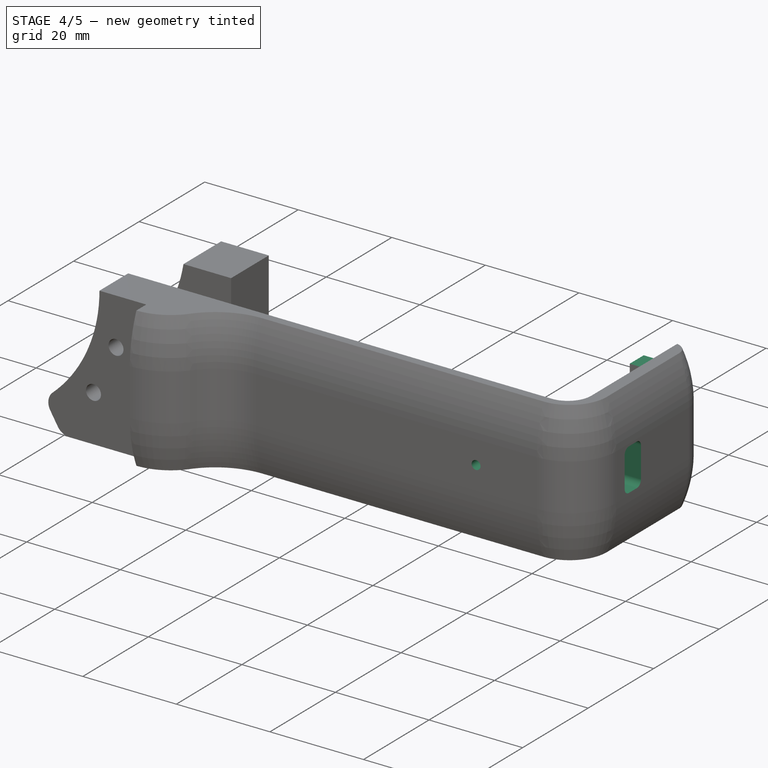
[diagram: stage 4 of 5 — iso view after this stage's code; geometry added in this stage tinted green]
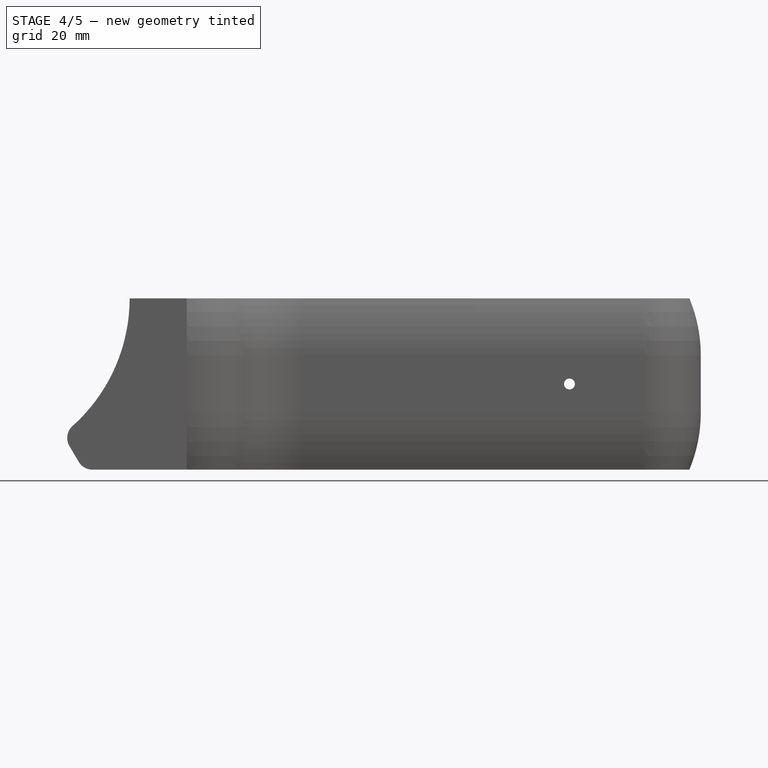
[diagram: stage 4 of 5 — front view after this stage's code; geometry added in this stage tinted green]
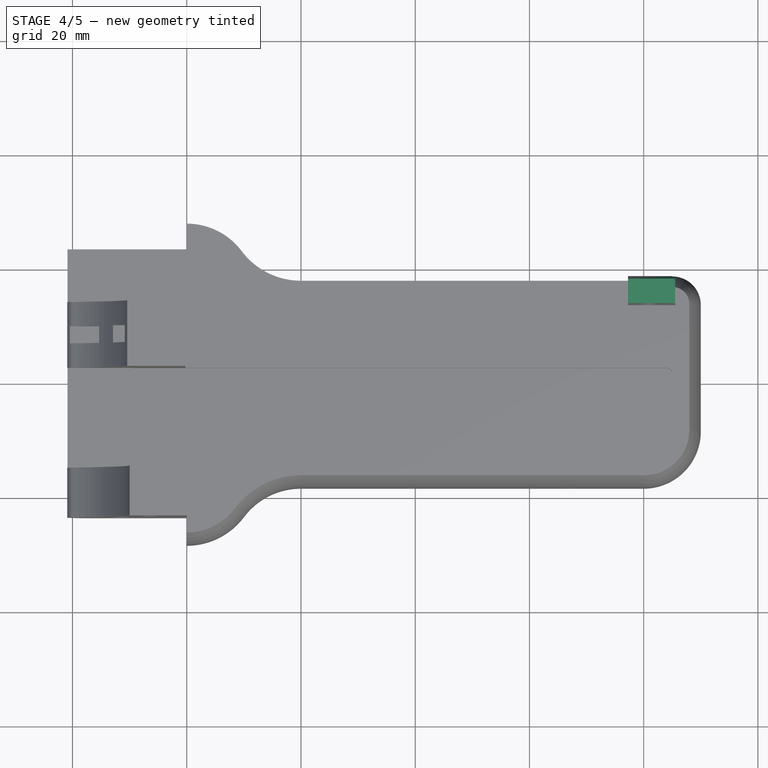
[diagram: stage 4 of 5 — top view after this stage's code; geometry added in this stage tinted green]
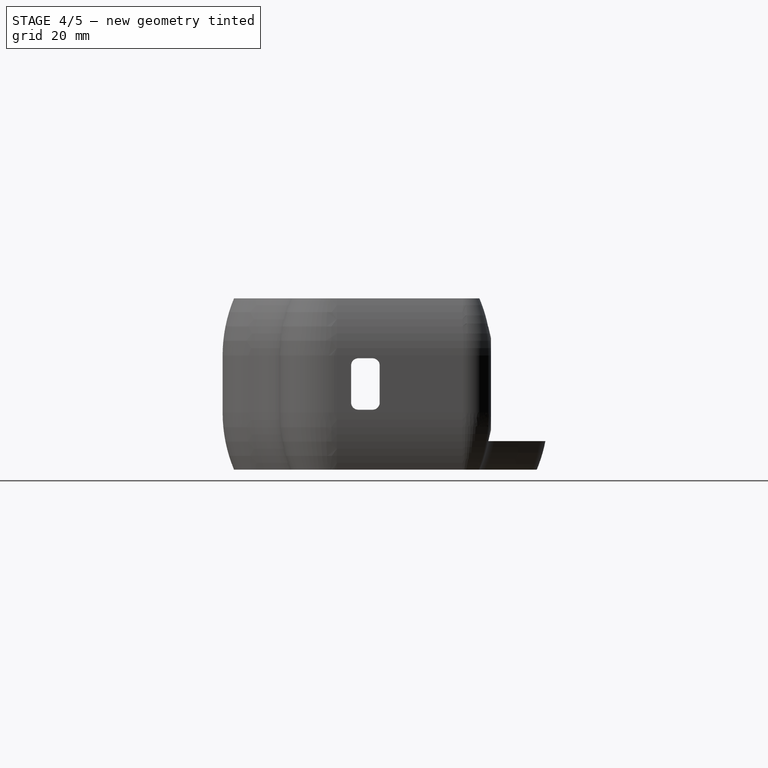
[diagram: stage 4 of 5 — right view after this stage's code; geometry added in this stage tinted green]
FEATURE [PartDesign::Pocket] Pocket011  label="pocket_servocable_hole"
  BaseFeature = -> Pocket010
  Direction = (-1,0,0)
  Length = 5
  Length2 = 5
  Profile = -> Sketch013
  ReferenceAxis = -> Sketch013 [N_Axis]
  Refine = true
  Suppressed = false
  Type = 0
FEATURE [PartDesign::Pocket] Pocket012  label="pocket_servopocket_interlock"
  BaseFeature = -> Pocket011
  Direction = (0,0,-1)
  Length = 5
  Length2 = 5
  Profile = -> Sketch014
  ReferenceAxis = -> Sketch014 [N_Axis]
  Refine = true
  Suppressed = false
  Type = 0
FEATURE [Sketcher::SketchObject] Sketch015  label="sk_screwhole_ball_bearing_pin"
  ArcFitTolerance = 1e-06
  AttachmentOffset = pos=(0,0,18.5) rot=(0,0,1;0rad)
  AttachmentSupport = -> [XZ_Plane]
  FullyConstrained = true
  MakeInternals = false
  MapMode = 5
  Placement = pos=(0,-18.5,4.1e-15) rot=(1,0,0;1.5708rad)
  expr: .AttachmentOffset.Base.z = <<sk_base>>.Constraints.width / 2 - <<sk_base>>.Constraints.width_curve
  expr: .Constraints.position_height = <<pad_base>>.Length / 2
  sketch-geometry (1):
    g0: Circle CenterX=107 CenterY=-15 CenterZ=0 NormalX=0 NormalY=0 NormalZ=1 AngleXU=0 Radius=0.95
  constraints (3):
    c: Distance(g0,g-1) = 15  'position_height'
    c: Radius(g0) = 0.95  'rad_screwhole'
    c: DistanceX(g-1,g0) = 107  'position_width'
FEATURE [Sketcher::SketchObject] Sketch017  label="sk_servopocket_bevel"
  ArcFitTolerance = 1e-06
  AttachmentOffset = pos=(0,0,117.25) rot=(0,0,1;0rad)
  AttachmentSupport = -> [YZ_Plane]
  FullyConstrained = true
  MakeInternals = false
  MapMode = 5
  Placement = pos=(117.25,0,0) rot=(0.57735,0.57735,0.57735;2.0944rad)
  expr: .AttachmentOffset.Base.z = <<sk_bottom_removal_and_interlock>>.Constraints.length - <<sk_bottom_removal_and_interlock>>.Constraints.length_notch
  expr: .Constraints.height_lower = <<pocket_bottom_removal_and_interlock>>.Length
  expr: .Constraints.height_upper = <<pocket_servopocket_interlock>>.Length
  expr: .Constraints.position_width = <<sk_base>>.Constraints.width / 2 - <<sk_base>>.Constraints.width_curve
  sketch-geometry (6):
    g0: LineSegment StartX=19.025 StartY=-5 StartZ=0 EndX=19.025 EndY=-25 EndZ=0
    g1: LineSegment StartX=19.025 StartY=-25 StartZ=0 EndX=18.025 EndY=-25 EndZ=0
    g2: LineSegment StartX=18.025 StartY=-25 StartZ=0 EndX=18.5 EndY=-23 EndZ=0
    g3: LineSegment StartX=18.5 StartY=-23 StartZ=0 EndX=18.5 EndY=-7 EndZ=0
    g4: LineSegment StartX=18.5 StartY=-7 StartZ=0 EndX=18.025 EndY=-5 EndZ=0
    g5: LineSegment StartX=18.025 StartY=-5 StartZ=0 EndX=19.025 EndY=-5 EndZ=0
  constraints (18):
    c: Vertical(g0)
    c: Coincident(g0,g1)
    c: Horizontal(g1)
    c: Coincident(g1,g2)
    c: Coincident(g2,g3)
    c: Vertical(g3)
    c: Coincident(g3,g4)
    c: Coincident(g4,g5)
    c: Coincident(g5,g0)
    c: Horizontal(g5)
    c: Distance(g0,g-1) = 5  'height_upper'
    c: Distance(g0,g-1) = 25  'height_lower'
    c: Vertical(g4,g1)
    c: Distance(g3,g-2) = 18.5  'position_width'
    c: DistanceX(g4,g3) = 0.475  'width_angle'
    c: DistanceY(g3,g4) = 2  'height_angle'
    c: Equal(g2,g4)
    c: DistanceX(g1,g1) = 1  'width'
FEATURE [PartDesign::Pocket] Pocket015  label="sk_servopocket_bevel001"
  BaseFeature = -> Pocket012
  Direction = (-1,0,0)
  Length = 5
  Length2 = 5
  Profile = -> Sketch017
  ReferenceAxis = -> Sketch017 [N_Axis]
  Refine = true
  Reversed = true
  Suppressed = false
  Type = 1
FEATURE [PartDesign::Pocket] Pocket013  label="pocket_screwhole_ball_bearing_pin"
  BaseFeature = -> Pocket015
  Direction = (0,1,-2e-16)
  Length = 4
  Length2 = 5
  Profile = -> Sketch015
  ReferenceAxis = -> Sketch015 [N_Axis]
  Refine = true
  Suppressed = false
  Type = 1
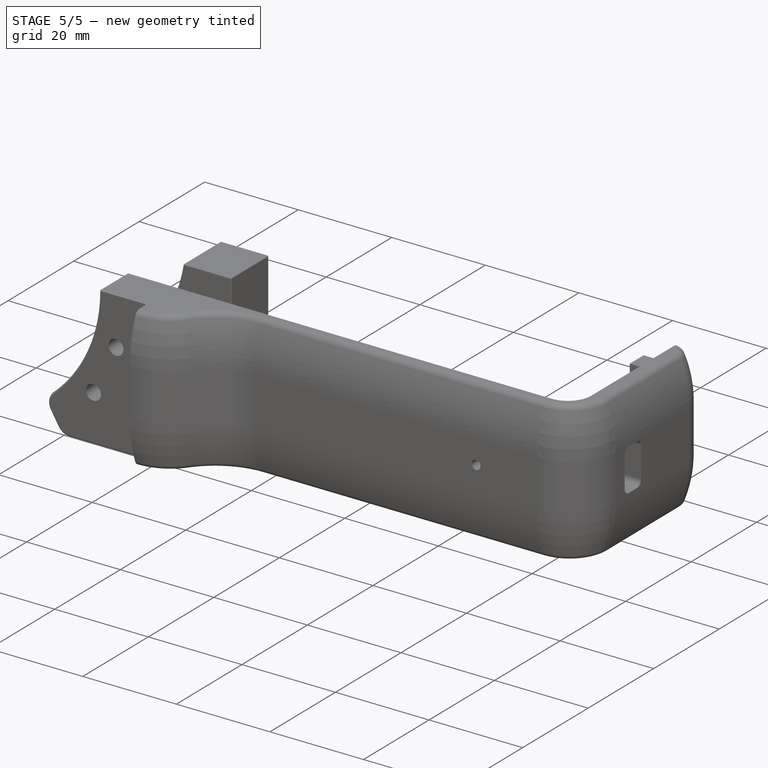
[diagram: stage 5 of 5 — iso view after this stage's code; geometry added in this stage tinted green]
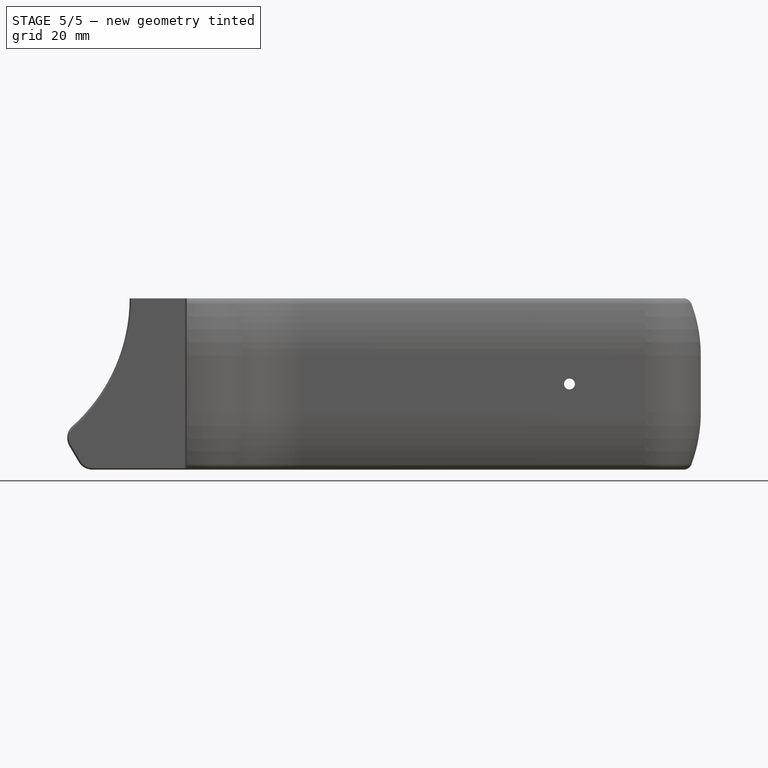
[diagram: stage 5 of 5 — front view after this stage's code; geometry added in this stage tinted green]
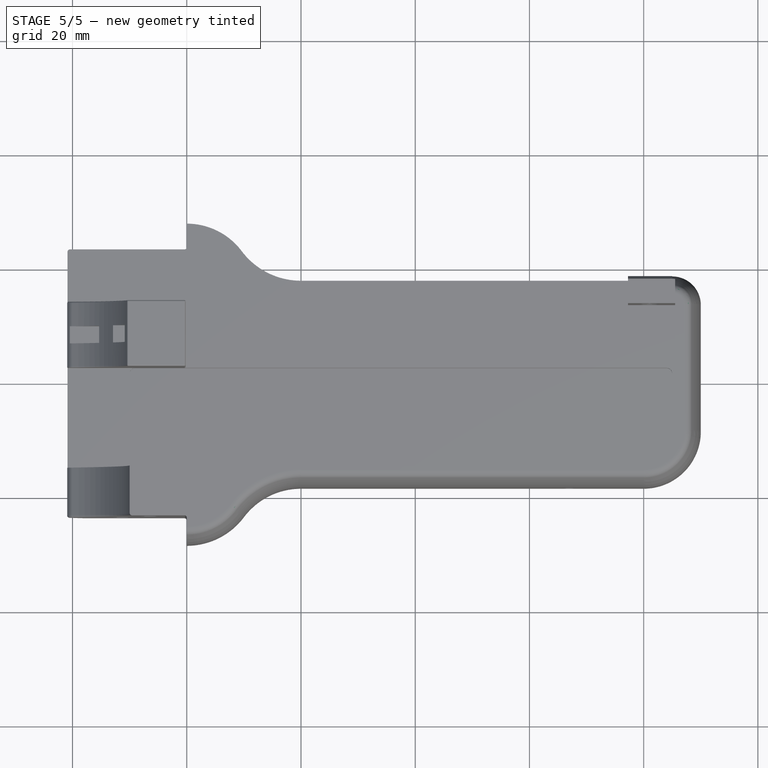
[diagram: stage 5 of 5 — top view after this stage's code; geometry added in this stage tinted green]
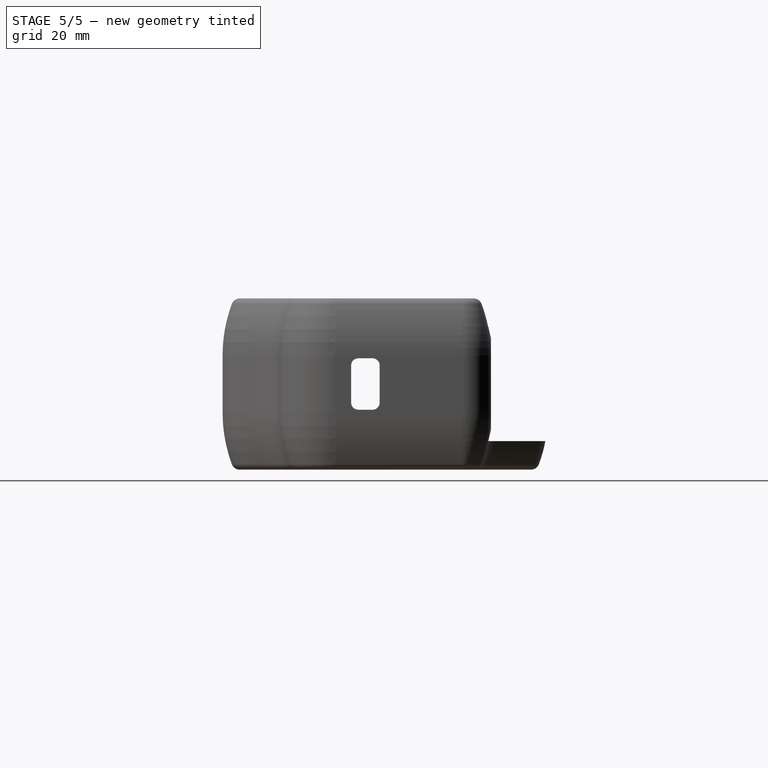
[diagram: stage 5 of 5 — right view after this stage's code; geometry added in this stage tinted green]
FEATURE [Sketcher::SketchObject] Sketch016  label="sk_nuthole_ball_bearing_pin"
  ArcFitTolerance = 1e-06
  AttachmentOffset = pos=(0,0,14.75) rot=(0,0,1;0rad)
  AttachmentSupport = -> [XZ_Plane]
  ExternalGeometry = -> [Pocket013]
  FullyConstrained = true
  MakeInternals = false
  MapMode = 5
  Placement = pos=(0,-14.75,3.3e-15) rot=(1,0,0;1.5708rad)
  expr: .AttachmentOffset.Base.z = <<sk_bottom_removal_and_interlock>>.Constraints.width - <<sk_base>>.Constraints.width / 2
  sketch-geometry (7):
    g0: LineSegment StartX=109.05 StartY=-13.8164 StartZ=0 EndX=107 EndY=-12.6329 EndZ=0
    g1: LineSegment StartX=107 StartY=-12.6329 StartZ=0 EndX=104.95 EndY=-13.8164 EndZ=0
    g2: LineSegment StartX=104.95 StartY=-13.8164 StartZ=0 EndX=104.95 EndY=-16.1836 EndZ=0
    g3: LineSegment StartX=104.95 StartY=-16.1836 StartZ=0 EndX=107 EndY=-17.3671 EndZ=0
    g4: LineSegment StartX=107 StartY=-17.3671 StartZ=0 EndX=109.05 EndY=-16.1836 EndZ=0
    g5: LineSegment StartX=109.05 StartY=-16.1836 StartZ=0 EndX=109.05 EndY=-13.8164 EndZ=0
    g6: Circle [constr] CenterX=107 CenterY=-15 CenterZ=0 NormalX=0 NormalY=0 NormalZ=1 AngleXU=0 Radius=2.36714
  constraints (16):
    c: Coincident(g0,g1)
    c: Coincident(g1,g2)
    c: Coincident(g2,g3)
    c: Coincident(g3,g4)
    c: Coincident(g4,g5)
    c: Coincident(g5,g0)
    c: Equal(g0, g1-g5) x5
    c: PointOnObject(g0,g6)
    c: PointOnObject(g1,g6)
    c: PointOnObject(g2,g6)
    c: PointOnObject(g3,g6)
    c: PointOnObject(g4,g6)
    c: PointOnObject(g5,g6)
    c: Coincident(g6,g-3)
    c: Vertical(g2)
    c: DistanceX(g1,g0) = 4.1  'width'
FEATURE [PartDesign::Pocket] Pocket014  label="pocket_nuthole_ball_bearing_pin"
  BaseFeature = -> Pocket013
  Direction = (0,1,-2e-16)
  Length = 1.5
  Length2 = 5
  Profile = -> Sketch016
  ReferenceAxis = -> Sketch016 [N_Axis]
  Refine = true
  Reversed = true
  Suppressed = false
  Type = 0
FEATURE [PartDesign::Fillet] Fillet  label="fillet_smooth_edges"
  Base = -> Pocket014 [Edge19,Edge38]
  BaseFeature = -> Pocket014
  Radius = 1.5
  Refine = true
  SupportTransform = false
  Suppressed = false
  UseAllEdges = false
FEATURE [PartDesign::Fillet] Fillet001  label="fillet_mount"
  Base = -> Fillet [Edge51,Edge50,Edge144,Edge199]
  BaseFeature = -> Fillet
  Radius = 0.4
  Refine = true
  SupportTransform = false
  Suppressed = false
  UseAllEdges = false
FEATURE [PartDesign::Fillet] Fillet002  label="fillet_interlock"
  Base = -> Fillet001 [Edge187,Edge193,Edge186,Edge203,Edge199,Edge194,Edge185,Edge217,Edge87,Edge89,Edge105]
  BaseFeature = -> Fillet001
  Radius = 0.2
  Refine = true
  SupportTransform = false
  Suppressed = false
  UseAllEdges = false
FEATURE [PartDesign::Body] Body  label="Limb_Top_Shell"
  AllowCompound = false
  Group = -> [Sketch,Pad,Sketch002,Pocket,Sketch003,Pocket001,Sketch001,Sketch005,SubtractivePipe,Pocket003,Sketch006,Pocket004,Sketch007,Pocket005,Sketch008,Pocket006,Sketch009,Pocket007,Sketch010,Pocket008,Sketch004,Sketch011,Pad001,Pocket009,Sketch012,Pocket010,Sketch013,Pocket011,Sketch014,Pocket012,Sketch015,Sketch017,Pocket015,Pocket013,Sketch016,Pocket014,Fillet,Fillet001,Fillet002]
  Origin = -> Origin
  Tip = -> Fillet002
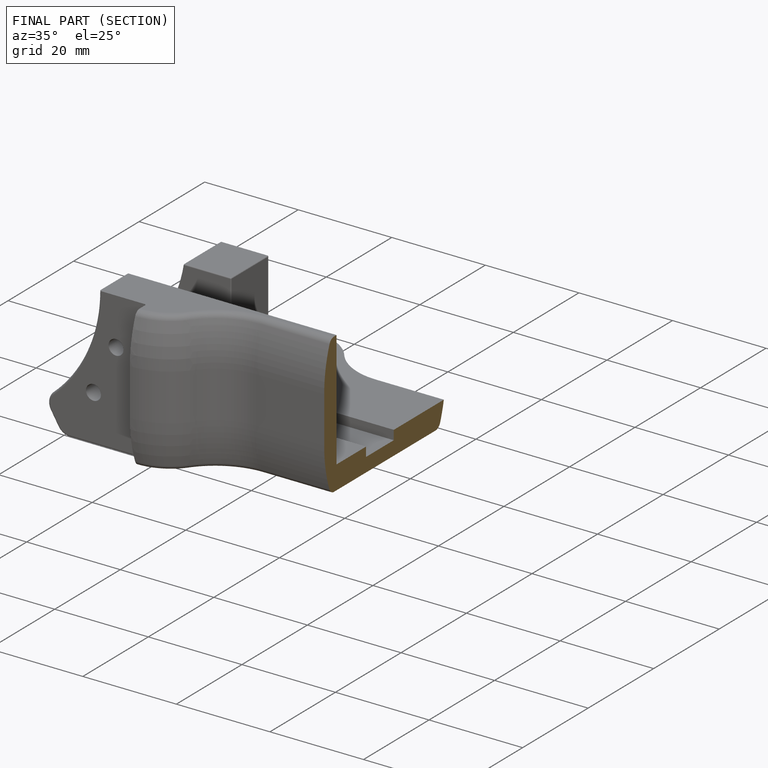
[diagram: finished part — half-section view (interior)]
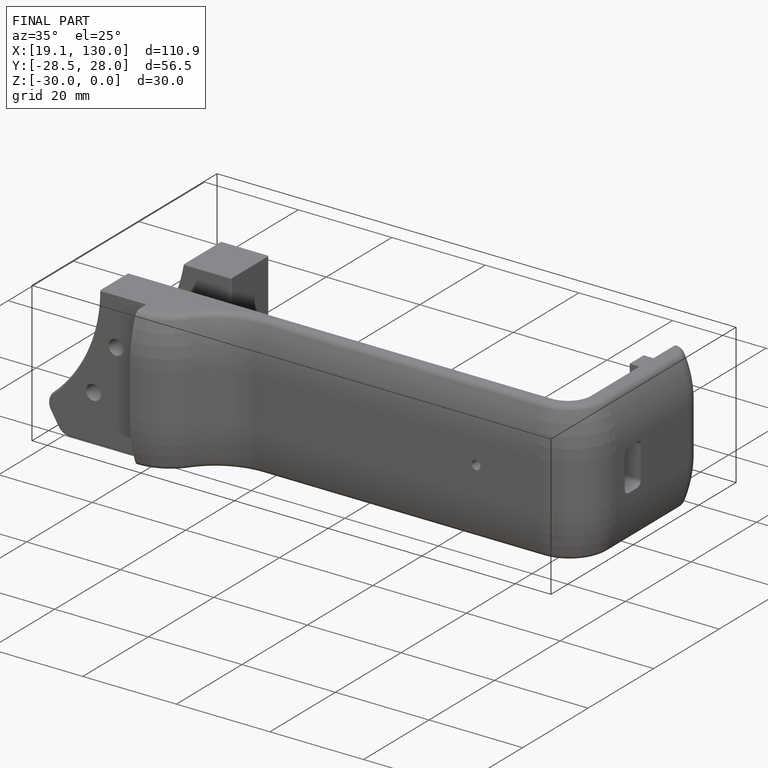
[diagram: finished part — iso view with bounding-box wireframe]
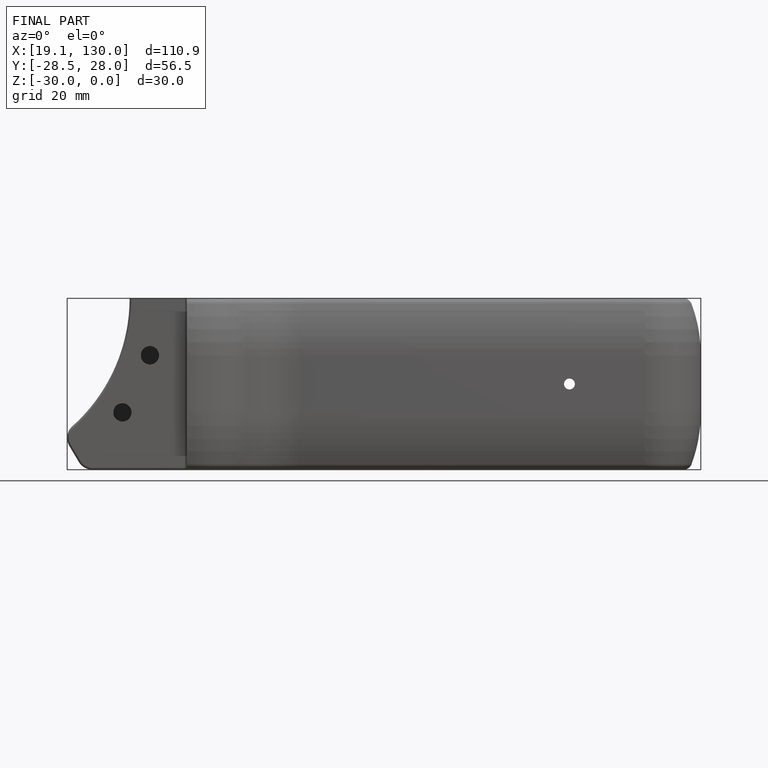
[diagram: finished part — front view with bounding-box wireframe]
